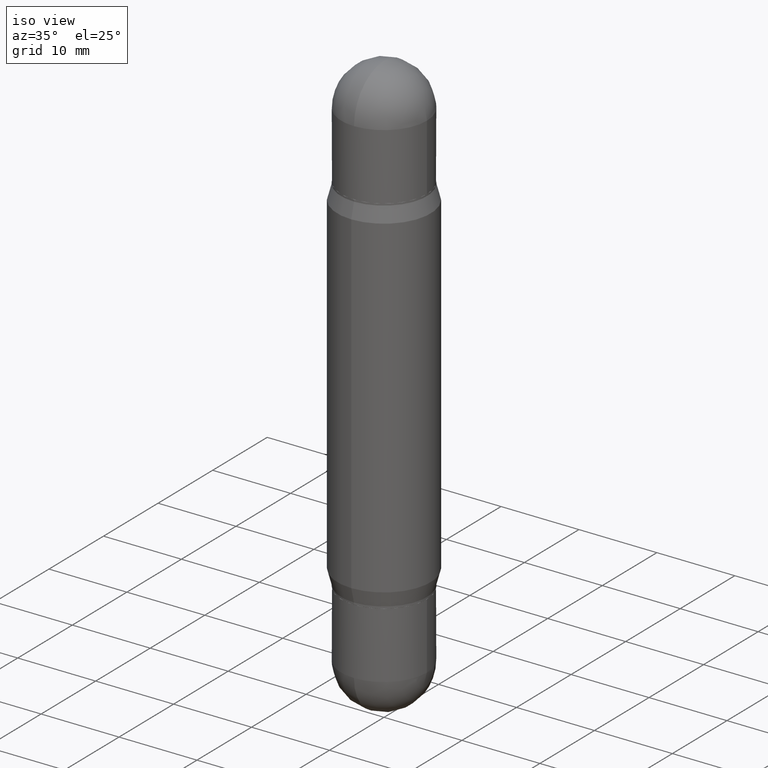
[diagram: clean part render]
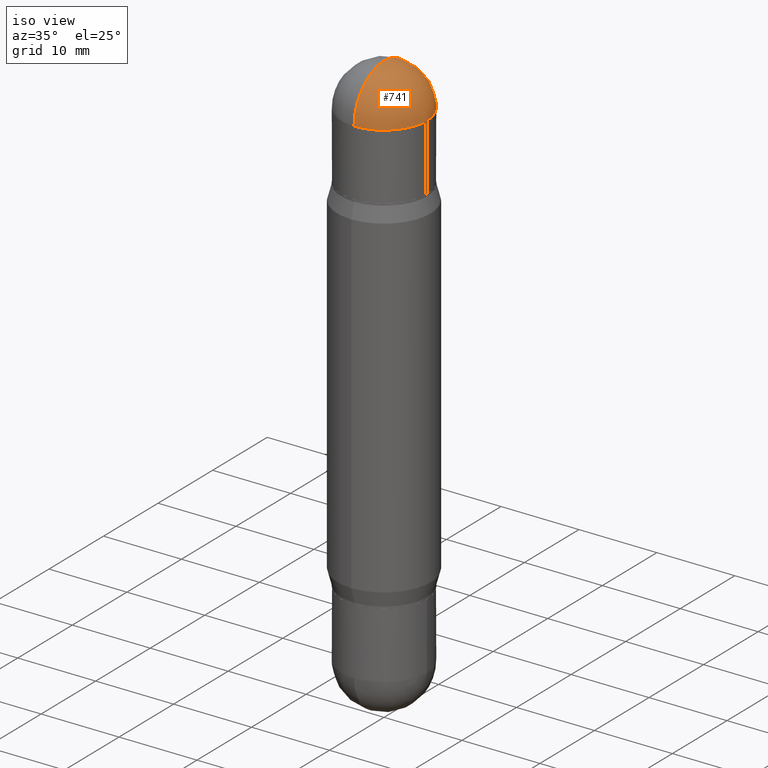
[diagram: same view with one face highlighted and labeled with its STEP entity id]
A machine part, iso view. The second image highlights one B-rep face of the part: STEP entity #741.
In plain terms, the highlighted spherical surface has radius 5.5004 mm.
Its self-contained STEP definition (entity closure, byte-faithful):
#79 = CIRCLE ( 'NONE', #225, 0.2165500000000001035 ) ;
#81 = CIRCLE ( 'NONE', #335, 0.2165500000000001035 ) ;
#90 = DIRECTION ( 'NONE',  ( 1.000000000000000000, -6.860497997771530774E-15, -5.827999781331232286E-31 ) ) ;
#102 = DIRECTION ( 'NONE',  ( 2.445468806185136597E-29, 3.479614466977828254E-15, 1.000000000000000000 ) ) ;
#170 = CARTESIAN_POINT ( 'NONE',  ( 1.512160567853029651E-15, 0.2165499999999994929, -0.2165500000000009362 ) ) ;
#196 = EDGE_CURVE ( 'NONE', #391, #1117, #79, .T. ) ;
#225 = AXIS2_PLACEMENT_3D ( 'NONE', #706, #102, #973 ) ;
#244 = AXIS2_PLACEMENT_3D ( 'NONE', #867, #358, #944 ) ;
#248 = ORIENTED_EDGE ( 'NONE', *, *, #196, .T. ) ;
#264 = CARTESIAN_POINT ( 'NONE',  ( 6.713302002095624841E-29, -7.396859276218296457E-16, -0.2165500000000001868 ) ) ;
#280 = DIRECTION ( 'NONE',  ( 6.860497997771531562E-15, 1.000000000000000000, 0.000000000000000000 ) ) ;
#292 = ORIENTED_EDGE ( 'NONE', *, *, #542, .T. ) ;
#294 = FACE_OUTER_BOUND ( 'NONE', #309, .T. ) ;
#309 = EDGE_LOOP ( 'NONE', ( #725, #469, #292, #248 ) ) ;
#333 = VERTEX_POINT ( 'NONE', #1070 ) ;
#335 = AXIS2_PLACEMENT_3D ( 'NONE', #420, #764, #337 ) ;
#337 = DIRECTION ( 'NONE',  ( 1.000000000000000000, -6.982962677686265922E-15, 0.000000000000000000 ) ) ;
#358 = DIRECTION ( 'NONE',  ( -1.000000000000000000, 6.982962677686265922E-15, 1.566701062080016245E-31 ) ) ;
#391 = VERTEX_POINT ( 'NONE', #738 ) ;
#420 = CARTESIAN_POINT ( 'NONE',  ( 6.691414020924079206E-29, -7.710307624460063053E-16, -0.2165500000000001868 ) ) ;
#469 = ORIENTED_EDGE ( 'NONE', *, *, #626, .T. ) ;
#516 = CIRCLE ( 'NONE', #244, 0.2165500000000003811 ) ;
#542 = EDGE_CURVE ( 'NONE', #778, #391, #81, .T. ) ;
#558 = CARTESIAN_POINT ( 'NONE',  ( -1.485640841417359468E-15, -0.2165500000000009917, -0.2165499999999994374 ) ) ;
#610 = EDGE_CURVE ( 'NONE', #333, #1117, #516, .T. ) ;
#622 = AXIS2_PLACEMENT_3D ( 'NONE', #893, #718, #1076 ) ;
#626 = EDGE_CURVE ( 'NONE', #333, #778, #821, .T. ) ;
#627 = SPHERICAL_SURFACE ( 'NONE', #622, 0.2165500000000003811 ) ;
#706 = CARTESIAN_POINT ( 'NONE',  ( 6.691414020924079206E-29, -7.710307624460063053E-16, -0.2165500000000001868 ) ) ;
#718 = DIRECTION ( 'NONE',  ( 1.000000000000000000, -6.982962677686265922E-15, -1.566701062080038578E-31 ) ) ;
#725 = ORIENTED_EDGE ( 'NONE', *, *, #610, .F. ) ;
#738 = CARTESIAN_POINT ( 'NONE',  ( 0.2165500000000001035, -2.865417820986029909E-15, -0.2165500000000001868 ) ) ;
#741 = ADVANCED_FACE ( 'NONE', ( #294 ), #627, .T. ) ;
#764 = DIRECTION ( 'NONE',  ( 2.445468806185136597E-29, 3.479614466977828254E-15, 1.000000000000000000 ) ) ;
#778 = VERTEX_POINT ( 'NONE', #558 ) ;
#821 = CIRCLE ( 'NONE', #946, 0.2165500000000003811 ) ;
#867 = CARTESIAN_POINT ( 'NONE',  ( 6.713302002095624841E-29, -7.396859276218296457E-16, -0.2165500000000001868 ) ) ;
#893 = CARTESIAN_POINT ( 'NONE',  ( 6.713302002095624841E-29, -7.396859276218296457E-16, -0.2165500000000001868 ) ) ;
#944 = DIRECTION ( 'NONE',  ( -6.982962677686265922E-15, -1.000000000000000000, 0.000000000000000000 ) ) ;
#946 = AXIS2_PLACEMENT_3D ( 'NONE', #264, #90, #280 ) ;
#973 = DIRECTION ( 'NONE',  ( 1.000000000000000000, -6.982962677686265922E-15, 0.000000000000000000 ) ) ;
#1070 = CARTESIAN_POINT ( 'NONE',  ( 7.252127585071107106E-29, 2.708444841998830582E-17, 2.048885995248197414E-16 ) ) ;
#1076 = DIRECTION ( 'NONE',  ( 6.982962677686265922E-15, 1.000000000000000000, -3.469213568495363757E-15 ) ) ;
#1117 = VERTEX_POINT ( 'NONE', #170 ) ;